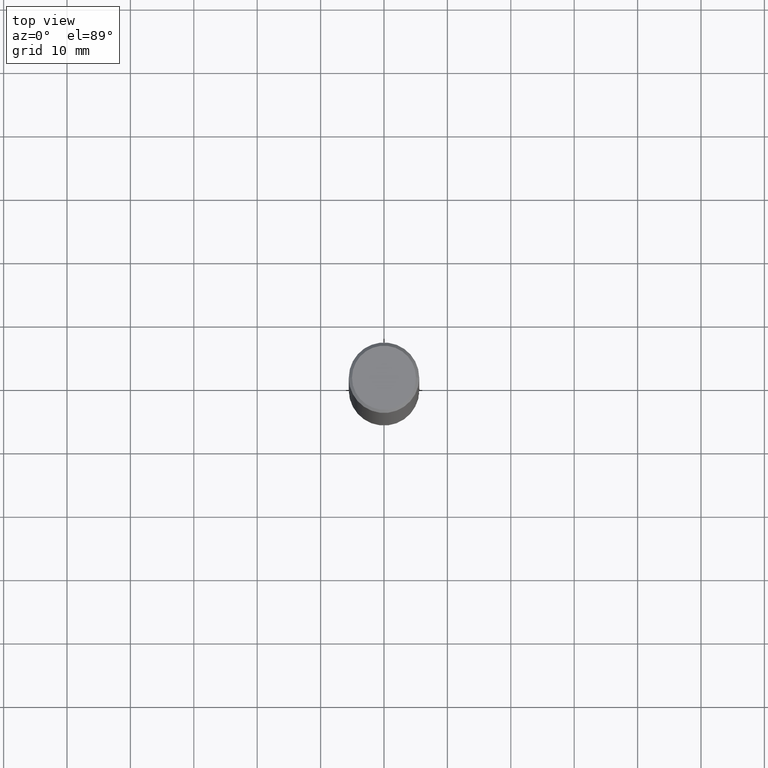
[diagram: clean part render]
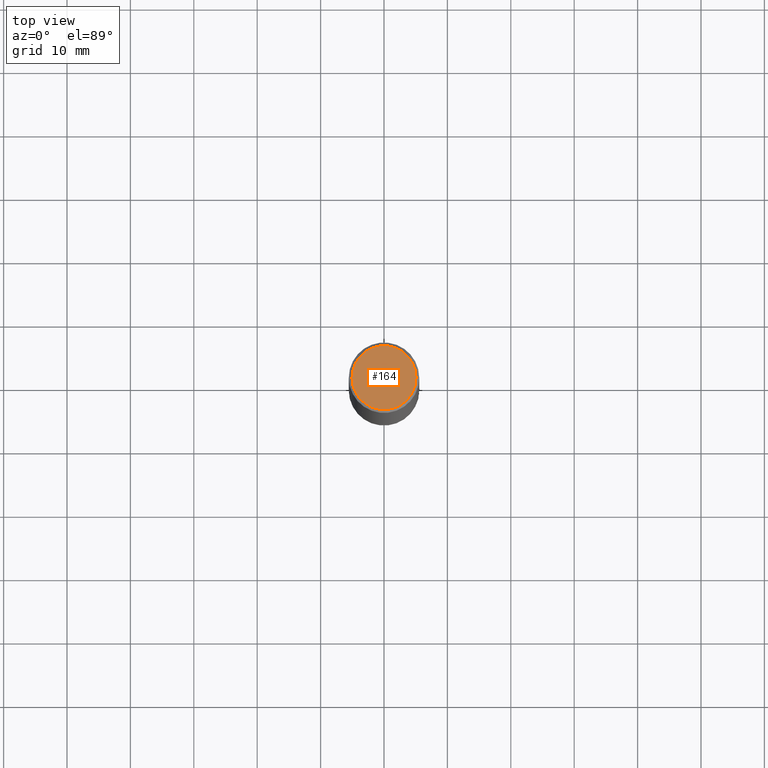
[diagram: same view with one face highlighted and labeled with its STEP entity id]
A machine part, top view. The second image highlights one B-rep face of the part: STEP entity #164.
In plain terms, the highlighted planar face has unit normal (0, -0, -1).
Its self-contained STEP definition (entity closure, byte-faithful):
#4 = DIRECTION ( 'NONE',  ( 1.000000000000000000, -6.982962677686266711E-15, 4.876104016579886393E-29 ) ) ;
#6 = PLANE ( 'NONE',  #87 ) ;
#13 = CIRCLE ( 'NONE', #245, 0.1987499999999995937 ) ;
#20 = ORIENTED_EDGE ( 'NONE', *, *, #231, .T. ) ;
#86 = CARTESIAN_POINT ( 'NONE',  ( -0.1987499999999995937, 1.422778645578573726E-15, 4.268512490090583644E-18 ) ) ;
#87 = AXIS2_PLACEMENT_3D ( 'NONE', #188, #295, #206 ) ;
#156 = DIRECTION ( 'NONE',  ( 1.000000000000000000, -6.982962677686266711E-15, 4.876104016579886393E-29 ) ) ;
#164 = ADVANCED_FACE ( 'NONE', ( #321 ), #6, .F. ) ;
#176 = EDGE_LOOP ( 'NONE', ( #360, #20 ) ) ;
#188 = CARTESIAN_POINT ( 'NONE',  ( 1.387863832190142472E-15, 0.1987499999999995937, -6.917976598500235863E-16 ) ) ;
#203 = CARTESIAN_POINT ( 'NONE',  ( 0.1987499999999995937, -1.467043770423235889E-15, 4.268512490110393759E-18 ) ) ;
#206 = DIRECTION ( 'NONE',  ( -1.000000000000000000, 6.982962677686265922E-15, -4.876176775795935793E-29 ) ) ;
#231 = EDGE_CURVE ( 'NONE', #263, #284, #13, .T. ) ;
#245 = AXIS2_PLACEMENT_3D ( 'NONE', #290, #339, #156 ) ;
#248 = CIRCLE ( 'NONE', #319, 0.1987499999999995937 ) ;
#263 = VERTEX_POINT ( 'NONE', #203 ) ;
#264 = DIRECTION ( 'NONE',  ( -2.445468806185136597E-29, 3.491481338843145583E-15, 1.000000000000000000 ) ) ;
#284 = VERTEX_POINT ( 'NONE', #86 ) ;
#286 = EDGE_CURVE ( 'NONE', #284, #263, #248, .T. ) ;
#290 = CARTESIAN_POINT ( 'NONE',  ( -1.043851414335219820E-46, 1.490343170380447200E-32, 4.268512490100411279E-18 ) ) ;
#295 = DIRECTION ( 'NONE',  ( 2.438088387897960049E-29, -3.491481338843145188E-15, -1.000000000000000000 ) ) ;
#315 = CARTESIAN_POINT ( 'NONE',  ( -1.043851414335219820E-46, 1.490343170380447200E-32, 4.268512490100411279E-18 ) ) ;
#319 = AXIS2_PLACEMENT_3D ( 'NONE', #315, #264, #4 ) ;
#321 = FACE_OUTER_BOUND ( 'NONE', #176, .T. ) ;
#339 = DIRECTION ( 'NONE',  ( -2.445468806185136597E-29, 3.491481338843145583E-15, 1.000000000000000000 ) ) ;
#360 = ORIENTED_EDGE ( 'NONE', *, *, #286, .T. ) ;